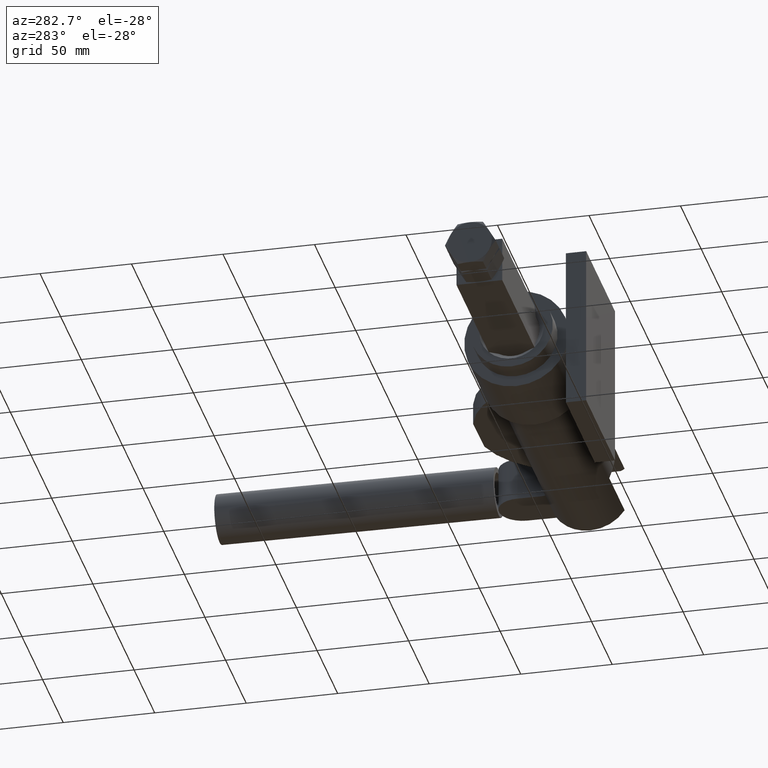
[diagram: clean part render]
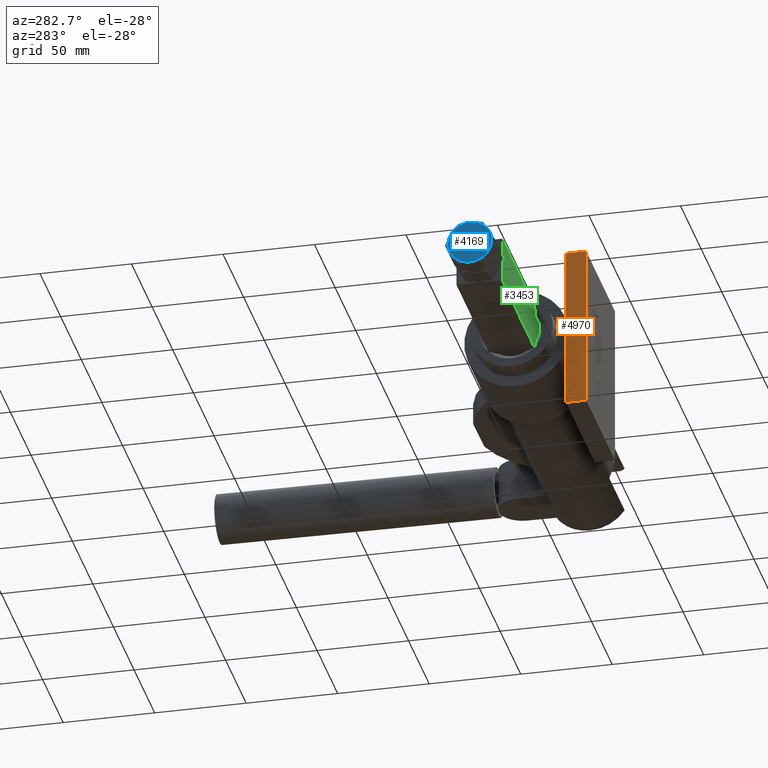
[diagram: same view with three faces highlighted in distinct colors, each labeled with its STEP entity id]
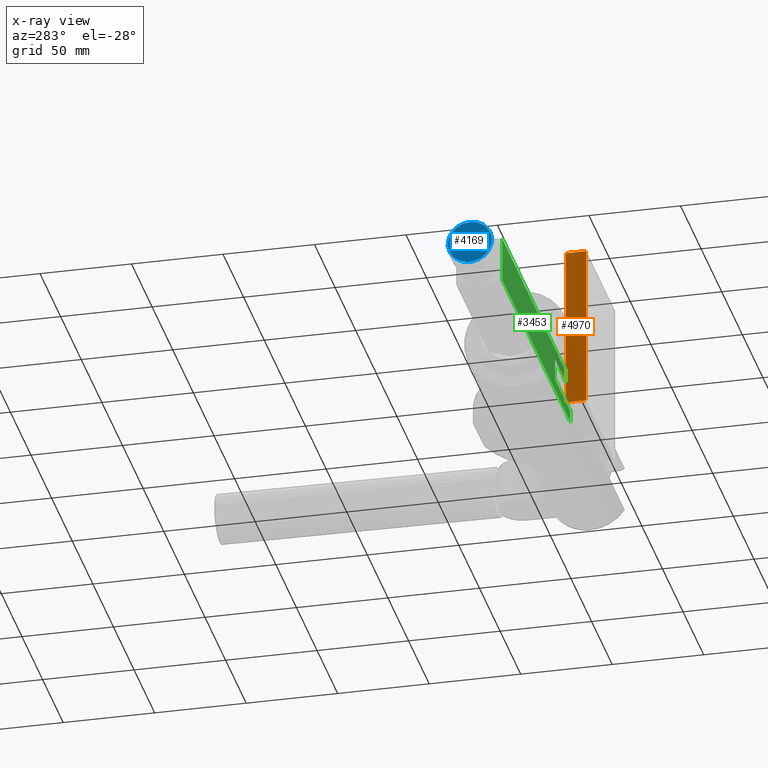
[diagram: x-ray of the same camera — body ghosted, the three highlighted faces saturated]
A machine part, auxiliary view with three faces highlighted in distinct colors.
The next image is the same camera in x-ray (body ghosted, the three faces saturated) — at least one of them is partly hidden behind the body in this view.
Their STEP definitions:

[orange] entity #4970 — the highlighted planar face has unit normal (1, 0, -0).
#26 = LINE ( 'NONE', #5282, #5473 ) ;
#319 = PLANE ( 'NONE',  #1636 ) ;
#350 = EDGE_CURVE ( 'NONE', #1466, #3956, #4071, .T. ) ;
#445 = CARTESIAN_POINT ( 'NONE',  ( -34.99999999999999300, 0.0000000000000000000, 45.00000000000000700 ) ) ;
#534 = EDGE_CURVE ( 'NONE', #1786, #1466, #4740, .T. ) ;
#636 = VECTOR ( 'NONE', #4482, 1000.000000000000000 ) ;
#961 = VERTEX_POINT ( 'NONE', #2576 ) ;
#1056 = CARTESIAN_POINT ( 'NONE',  ( -35.00000000000002100, 11.10000000000000000, -44.99999999999996400 ) ) ;
#1466 = VERTEX_POINT ( 'NONE', #3394 ) ;
#1636 = AXIS2_PLACEMENT_3D ( 'NONE', #4150, #2035, #5029 ) ;
#1786 = VERTEX_POINT ( 'NONE', #1056 ) ;
#2035 = DIRECTION ( 'NONE',  ( 1.000000000000000000, 0.0000000000000000000, -2.766582776912872900E-016 ) ) ;
#2086 = FACE_OUTER_BOUND ( 'NONE', #3741, .T. ) ;
#2234 = CARTESIAN_POINT ( 'NONE',  ( -35.00000000000002100, 11.10000000000000000, -44.99999999999996400 ) ) ;
#2341 = CARTESIAN_POINT ( 'NONE',  ( -34.99999999999999300, 11.10000000000000000, 45.00000000000000700 ) ) ;
#2358 = CARTESIAN_POINT ( 'NONE',  ( -35.00000000000002100, 11.10000000000000000, -44.99999999999996400 ) ) ;
#2430 = LINE ( 'NONE', #2358, #2578 ) ;
#2554 = EDGE_CURVE ( 'NONE', #961, #3956, #26, .T. ) ;
#2576 = CARTESIAN_POINT ( 'NONE',  ( -35.00000000000002100, 0.0000000000000000000, -44.99999999999996400 ) ) ;
#2578 = VECTOR ( 'NONE', #3230, 1000.000000000000000 ) ;
#3158 = DIRECTION ( 'NONE',  ( 2.766582776912873400E-016, 0.0000000000000000000, 1.000000000000000000 ) ) ;
#3230 = DIRECTION ( 'NONE',  ( 0.0000000000000000000, -1.000000000000000000, -0.0000000000000000000 ) ) ;
#3394 = CARTESIAN_POINT ( 'NONE',  ( -34.99999999999999300, 11.10000000000000000, 45.00000000000000700 ) ) ;
#3416 = ORIENTED_EDGE ( 'NONE', *, *, #534, .F. ) ;
#3552 = DIRECTION ( 'NONE',  ( 2.766582776912873400E-016, 0.0000000000000000000, 1.000000000000000000 ) ) ;
#3622 = VECTOR ( 'NONE', #3552, 1000.000000000000000 ) ;
#3741 = EDGE_LOOP ( 'NONE', ( #4487, #3797, #3416, #4771 ) ) ;
#3797 = ORIENTED_EDGE ( 'NONE', *, *, #350, .F. ) ;
#3956 = VERTEX_POINT ( 'NONE', #445 ) ;
#4071 = LINE ( 'NONE', #2341, #636 ) ;
#4150 = CARTESIAN_POINT ( 'NONE',  ( -35.00000000000002100, 11.10000000000000000, -44.99999999999996400 ) ) ;
#4229 = EDGE_CURVE ( 'NONE', #1786, #961, #2430, .T. ) ;
#4482 = DIRECTION ( 'NONE',  ( 0.0000000000000000000, -1.000000000000000000, -0.0000000000000000000 ) ) ;
#4487 = ORIENTED_EDGE ( 'NONE', *, *, #2554, .T. ) ;
#4740 = LINE ( 'NONE', #2234, #3622 ) ;
#4771 = ORIENTED_EDGE ( 'NONE', *, *, #4229, .T. ) ;
#4970 = ADVANCED_FACE ( 'NONE', ( #2086 ), #319, .F. ) ;
#5029 = DIRECTION ( 'NONE',  ( -2.766582776912872900E-016, 0.0000000000000000000, -1.000000000000000000 ) ) ;
#5282 = CARTESIAN_POINT ( 'NONE',  ( -35.00000000000002100, 0.0000000000000000000, -44.99999999999996400 ) ) ;
#5473 = VECTOR ( 'NONE', #3158, 1000.000000000000000 ) ;

[blue] entity #4169 — the highlighted planar face has unit normal (1, 0, 0).
#55 = ORIENTED_EDGE ( 'NONE', *, *, #1609, .F. ) ;
#179 = CARTESIAN_POINT ( 'NONE',  ( -122.2108358068860500, 28.50000000000006400, 1.066854937725726600E-013 ) ) ;
#602 = DIRECTION ( 'NONE',  ( 0.0000000000000000000, -0.8660254037844330500, 0.5000000000000097700 ) ) ;
#704 = EDGE_CURVE ( 'NONE', #1154, #1033, #3353, .T. ) ;
#751 = EDGE_LOOP ( 'NONE', ( #1160, #1008, #55, #2178, #5162, #1637 ) ) ;
#833 = CARTESIAN_POINT ( 'NONE',  ( -122.2108358068860500, 28.50000000000006400, 1.066854937725726600E-013 ) ) ;
#850 = EDGE_CURVE ( 'NONE', #1363, #5142, #1226, .T. ) ;
#1008 = ORIENTED_EDGE ( 'NONE', *, *, #850, .F. ) ;
#1033 = VERTEX_POINT ( 'NONE', #2636 ) ;
#1154 = VERTEX_POINT ( 'NONE', #2704 ) ;
#1160 = ORIENTED_EDGE ( 'NONE', *, *, #1167, .F. ) ;
#1167 = EDGE_CURVE ( 'NONE', #5142, #1154, #2596, .T. ) ;
#1226 = CIRCLE ( 'NONE', #5451, 12.00000000000009800 ) ;
#1247 = DIRECTION ( 'NONE',  ( 0.0000000000000000000, -0.8660254037844330500, 0.5000000000000097700 ) ) ;
#1343 = DIRECTION ( 'NONE',  ( 1.000000000000000000, 0.0000000000000000000, 0.0000000000000000000 ) ) ;
#1353 = CIRCLE ( 'NONE', #2157, 12.00000000000009800 ) ;
#1363 = VERTEX_POINT ( 'NONE', #2002 ) ;
#1379 = EDGE_CURVE ( 'NONE', #2309, #1033, #5266, .T. ) ;
#1438 = DIRECTION ( 'NONE',  ( 1.000000000000000000, 0.0000000000000000000, 0.0000000000000000000 ) ) ;
#1490 = EDGE_CURVE ( 'NONE', #2309, #2039, #4725, .T. ) ;
#1576 = CARTESIAN_POINT ( 'NONE',  ( -122.2108358068860500, 28.50000000000006400, 1.066854937725726600E-013 ) ) ;
#1609 = EDGE_CURVE ( 'NONE', #2039, #1363, #1353, .T. ) ;
#1637 = ORIENTED_EDGE ( 'NONE', *, *, #704, .F. ) ;
#1710 = AXIS2_PLACEMENT_3D ( 'NONE', #179, #3206, #602 ) ;
#1857 = AXIS2_PLACEMENT_3D ( 'NONE', #833, #3846, #1247 ) ;
#2002 = CARTESIAN_POINT ( 'NONE',  ( -122.2108358068860400, 28.50000000000018500, 12.00000000000023100 ) ) ;
#2005 = DIRECTION ( 'NONE',  ( 0.0000000000000000000, -0.8660254037844330500, 0.5000000000000097700 ) ) ;
#2016 = DIRECTION ( 'NONE',  ( -1.000000000000000000, 0.0000000000000000000, 0.0000000000000000000 ) ) ;
#2039 = VERTEX_POINT ( 'NONE', #5038 ) ;
#2157 = AXIS2_PLACEMENT_3D ( 'NONE', #3935, #1343, #4359 ) ;
#2178 = ORIENTED_EDGE ( 'NONE', *, *, #1490, .F. ) ;
#2279 = CARTESIAN_POINT ( 'NONE',  ( -122.2108358068860500, 28.50000000000006400, 1.066854937725726600E-013 ) ) ;
#2309 = VERTEX_POINT ( 'NONE', #5182 ) ;
#2344 = AXIS2_PLACEMENT_3D ( 'NONE', #2279, #5288, #2724 ) ;
#2505 = FACE_OUTER_BOUND ( 'NONE', #751, .T. ) ;
#2596 = CIRCLE ( 'NONE', #2344, 12.00000000000009800 ) ;
#2636 = CARTESIAN_POINT ( 'NONE',  ( -122.2108358068860400, 28.50000000000002500, -12.00000000000001600 ) ) ;
#2704 = CARTESIAN_POINT ( 'NONE',  ( -122.2108358068860400, 18.10769515458665800, -5.999999999999901400 ) ) ;
#2724 = DIRECTION ( 'NONE',  ( 0.0000000000000000000, -0.8660254037844330500, 0.5000000000000097700 ) ) ;
#2792 = AXIS2_PLACEMENT_3D ( 'NONE', #4022, #1438, #4438 ) ;
#3206 = DIRECTION ( 'NONE',  ( 1.000000000000000000, 0.0000000000000000000, 0.0000000000000000000 ) ) ;
#3353 = CIRCLE ( 'NONE', #1710, 12.00000000000009800 ) ;
#3846 = DIRECTION ( 'NONE',  ( 1.000000000000000000, 0.0000000000000000000, 0.0000000000000000000 ) ) ;
#3935 = CARTESIAN_POINT ( 'NONE',  ( -122.2108358068860500, 28.50000000000006400, 1.066854937725726600E-013 ) ) ;
#3972 = AXIS2_PLACEMENT_3D ( 'NONE', #4586, #2016, #5012 ) ;
#4022 = CARTESIAN_POINT ( 'NONE',  ( -122.2108358068860500, 28.50000000000000000, 0.0000000000000000000 ) ) ;
#4169 = ADVANCED_FACE ( 'NONE', ( #2505 ), #4837, .F. ) ;
#4359 = DIRECTION ( 'NONE',  ( 0.0000000000000000000, -0.8660254037844330500, 0.5000000000000097700 ) ) ;
#4438 = DIRECTION ( 'NONE',  ( 0.0000000000000000000, -0.8660254037844330500, 0.5000000000000096600 ) ) ;
#4566 = DIRECTION ( 'NONE',  ( 1.000000000000000000, 0.0000000000000000000, 0.0000000000000000000 ) ) ;
#4586 = CARTESIAN_POINT ( 'NONE',  ( -122.2108358068860400, 28.50000000000006400, 1.066854937725726600E-013 ) ) ;
#4725 = CIRCLE ( 'NONE', #1857, 12.00000000000009800 ) ;
#4837 = PLANE ( 'NONE',  #2792 ) ;
#5012 = DIRECTION ( 'NONE',  ( 0.0000000000000000000, 0.8660254037844330500, -0.5000000000000096600 ) ) ;
#5038 = CARTESIAN_POINT ( 'NONE',  ( -122.2108358068860400, 38.89230484541346300, 6.000000000000115500 ) ) ;
#5098 = CARTESIAN_POINT ( 'NONE',  ( -122.2108358068860400, 18.10769515458673600, 6.000000000000247800 ) ) ;
#5142 = VERTEX_POINT ( 'NONE', #5098 ) ;
#5162 = ORIENTED_EDGE ( 'NONE', *, *, #1379, .T. ) ;
#5182 = CARTESIAN_POINT ( 'NONE',  ( -122.2108358068860400, 38.89230484541342700, -5.999999999999964500 ) ) ;
#5266 = CIRCLE ( 'NONE', #3972, 12.00000000000012300 ) ;
#5288 = DIRECTION ( 'NONE',  ( 1.000000000000000000, 0.0000000000000000000, 0.0000000000000000000 ) ) ;
#5451 = AXIS2_PLACEMENT_3D ( 'NONE', #1576, #4566, #2005 ) ;

[green] entity #3453 — the highlighted planar face has unit normal (0, 1, 0).
#124 = EDGE_CURVE ( 'NONE', #796, #2780, #706, .T. ) ;
#135 = CARTESIAN_POINT ( 'NONE',  ( 9.709343402718763700, 27.09999999999999100, -6.000000000000036400 ) ) ;
#169 = LINE ( 'NONE', #976, #3488 ) ;
#242 = CARTESIAN_POINT ( 'NONE',  ( 9.709343402718763700, 27.09999999999999100, 5.999999999999972500 ) ) ;
#277 = ORIENTED_EDGE ( 'NONE', *, *, #3647, .F. ) ;
#348 = DIRECTION ( 'NONE',  ( -0.0000000000000000000, 1.000000000000000000, 1.387778780781446700E-016 ) ) ;
#398 = ORIENTED_EDGE ( 'NONE', *, *, #953, .F. ) ;
#593 = EDGE_CURVE ( 'NONE', #2315, #2863, #169, .T. ) ;
#626 = VERTEX_POINT ( 'NONE', #135 ) ;
#694 = VECTOR ( 'NONE', #5186, 1000.000000000000000 ) ;
#706 = LINE ( 'NONE', #724, #4012 ) ;
#724 = CARTESIAN_POINT ( 'NONE',  ( 46.70934340271877300, 27.09999999999999100, 5.999999999999963600 ) ) ;
#738 = FACE_OUTER_BOUND ( 'NONE', #4501, .T. ) ;
#747 = PLANE ( 'NONE',  #3801 ) ;
#796 = VERTEX_POINT ( 'NONE', #242 ) ;
#893 = VERTEX_POINT ( 'NONE', #3853 ) ;
#943 = CARTESIAN_POINT ( 'NONE',  ( 46.70934340271875800, 27.09999999999999400, -12.50000000000001400 ) ) ;
#953 = EDGE_CURVE ( 'NONE', #4696, #2780, #2307, .T. ) ;
#976 = CARTESIAN_POINT ( 'NONE',  ( -118.2906565972812400, 27.09999999999999100, 12.49999999999997000 ) ) ;
#1024 = EDGE_CURVE ( 'NONE', #4696, #2315, #1844, .T. ) ;
#1088 = EDGE_CURVE ( 'NONE', #626, #796, #5131, .T. ) ;
#1127 = EDGE_CURVE ( 'NONE', #3379, #2863, #3869, .T. ) ;
#1133 = CARTESIAN_POINT ( 'NONE',  ( 46.70934340271875800, 27.09999999999999400, -12.50000000000001400 ) ) ;
#1142 = CARTESIAN_POINT ( 'NONE',  ( -118.2906565972812400, 27.09999999999999400, -12.50000000000001400 ) ) ;
#1381 = CARTESIAN_POINT ( 'NONE',  ( 46.70934340271875800, 27.09999999999999100, 12.49999999999997000 ) ) ;
#1391 = DIRECTION ( 'NONE',  ( 0.0000000000000000000, 1.387778780781446700E-016, -1.000000000000000000 ) ) ;
#1410 = ORIENTED_EDGE ( 'NONE', *, *, #1024, .T. ) ;
#1727 = CARTESIAN_POINT ( 'NONE',  ( 46.70934340271875800, 27.09999999999999100, 12.49999999999997000 ) ) ;
#1844 = LINE ( 'NONE', #4336, #694 ) ;
#1959 = LINE ( 'NONE', #1381, #5105 ) ;
#1965 = LINE ( 'NONE', #4067, #2986 ) ;
#1988 = ORIENTED_EDGE ( 'NONE', *, *, #593, .T. ) ;
#2120 = ORIENTED_EDGE ( 'NONE', *, *, #124, .T. ) ;
#2277 = DIRECTION ( 'NONE',  ( 0.0000000000000000000, 1.387778780781446700E-016, -1.000000000000000000 ) ) ;
#2281 = CARTESIAN_POINT ( 'NONE',  ( 46.70934340271875800, 27.09999999999999100, 12.49999999999997000 ) ) ;
#2307 = LINE ( 'NONE', #1727, #4455 ) ;
#2315 = VERTEX_POINT ( 'NONE', #3421 ) ;
#2426 = DIRECTION ( 'NONE',  ( 1.000000000000000000, -0.0000000000000000000, -2.344220913482171200E-016 ) ) ;
#2530 = ORIENTED_EDGE ( 'NONE', *, *, #1127, .F. ) ;
#2654 = CARTESIAN_POINT ( 'NONE',  ( 9.709343402718763700, 27.09999999999999100, -6.000000000000036400 ) ) ;
#2715 = ORIENTED_EDGE ( 'NONE', *, *, #1088, .T. ) ;
#2780 = VERTEX_POINT ( 'NONE', #3323 ) ;
#2798 = DIRECTION ( 'NONE',  ( -1.000000000000000000, 0.0000000000000000000, 0.0000000000000000000 ) ) ;
#2863 = VERTEX_POINT ( 'NONE', #1142 ) ;
#2986 = VECTOR ( 'NONE', #2798, 1000.000000000000000 ) ;
#3004 = VECTOR ( 'NONE', #3092, 1000.000000000000000 ) ;
#3092 = DIRECTION ( 'NONE',  ( 0.0000000000000000000, 0.0000000000000000000, 1.000000000000000000 ) ) ;
#3257 = EDGE_CURVE ( 'NONE', #893, #626, #1965, .T. ) ;
#3323 = CARTESIAN_POINT ( 'NONE',  ( 46.70934340271877300, 27.09999999999999100, 5.999999999999963600 ) ) ;
#3376 = DIRECTION ( 'NONE',  ( 0.0000000000000000000, -1.387778780781446700E-016, 1.000000000000000000 ) ) ;
#3379 = VERTEX_POINT ( 'NONE', #1133 ) ;
#3421 = CARTESIAN_POINT ( 'NONE',  ( -118.2906565972812400, 27.09999999999999100, 12.49999999999997000 ) ) ;
#3453 = ADVANCED_FACE ( 'NONE', ( #738 ), #747, .F. ) ;
#3488 = VECTOR ( 'NONE', #1391, 1000.000000000000000 ) ;
#3647 = EDGE_CURVE ( 'NONE', #893, #3379, #1959, .T. ) ;
#3712 = ORIENTED_EDGE ( 'NONE', *, *, #3257, .T. ) ;
#3801 = AXIS2_PLACEMENT_3D ( 'NONE', #5049, #348, #3376 ) ;
#3853 = CARTESIAN_POINT ( 'NONE',  ( 46.70934340271875800, 27.09999999999999100, -6.000000000000032900 ) ) ;
#3869 = LINE ( 'NONE', #943, #4866 ) ;
#3874 = DIRECTION ( 'NONE',  ( 0.0000000000000000000, 1.387778780781446700E-016, -1.000000000000000000 ) ) ;
#4012 = VECTOR ( 'NONE', #2426, 1000.000000000000000 ) ;
#4067 = CARTESIAN_POINT ( 'NONE',  ( 46.70934340271877300, 27.09999999999999100, -6.000000000000036400 ) ) ;
#4336 = CARTESIAN_POINT ( 'NONE',  ( 46.70934340271875800, 27.09999999999999100, 12.49999999999997000 ) ) ;
#4455 = VECTOR ( 'NONE', #3874, 1000.000000000000000 ) ;
#4501 = EDGE_LOOP ( 'NONE', ( #2715, #2120, #398, #1410, #1988, #2530, #277, #3712 ) ) ;
#4696 = VERTEX_POINT ( 'NONE', #2281 ) ;
#4866 = VECTOR ( 'NONE', #5241, 1000.000000000000000 ) ;
#5049 = CARTESIAN_POINT ( 'NONE',  ( 46.70934340271875800, 27.09999999999999100, 12.49999999999997000 ) ) ;
#5105 = VECTOR ( 'NONE', #2277, 1000.000000000000000 ) ;
#5131 = LINE ( 'NONE', #2654, #3004 ) ;
#5186 = DIRECTION ( 'NONE',  ( -1.000000000000000000, -0.0000000000000000000, -0.0000000000000000000 ) ) ;
#5241 = DIRECTION ( 'NONE',  ( -1.000000000000000000, -0.0000000000000000000, -0.0000000000000000000 ) ) ;